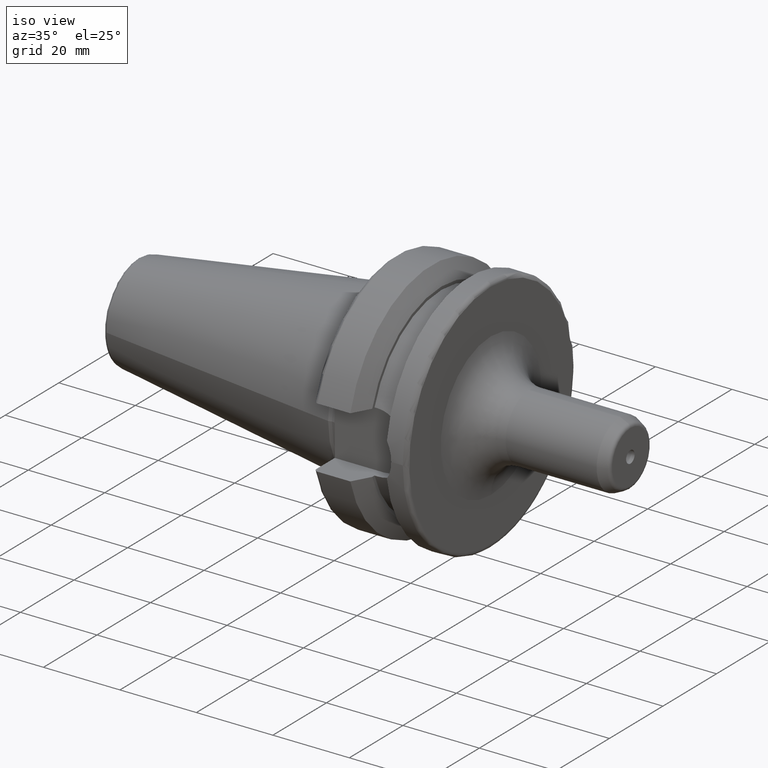
[diagram: clean part render]
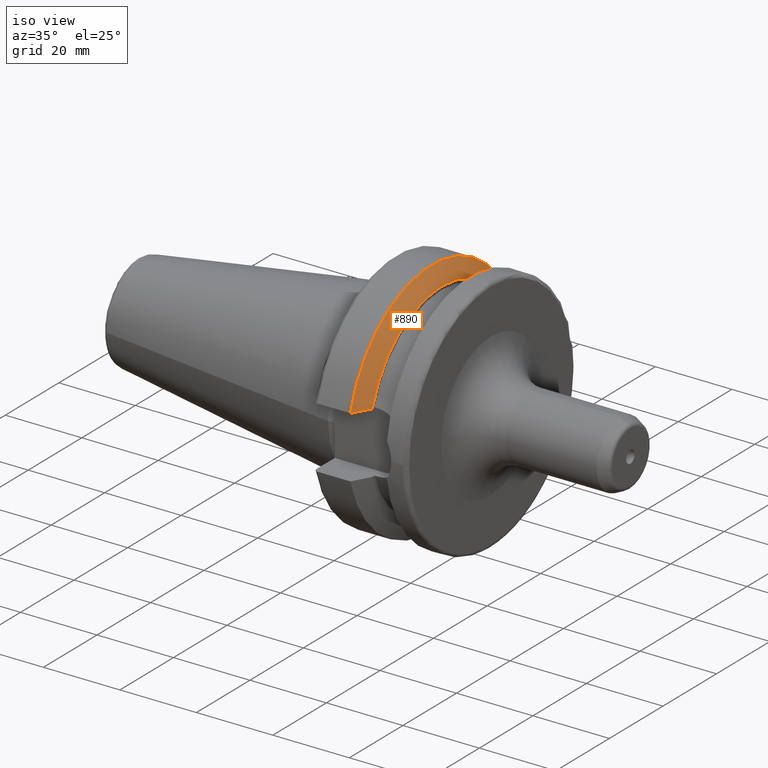
[diagram: same view with one face highlighted and labeled with its STEP entity id]
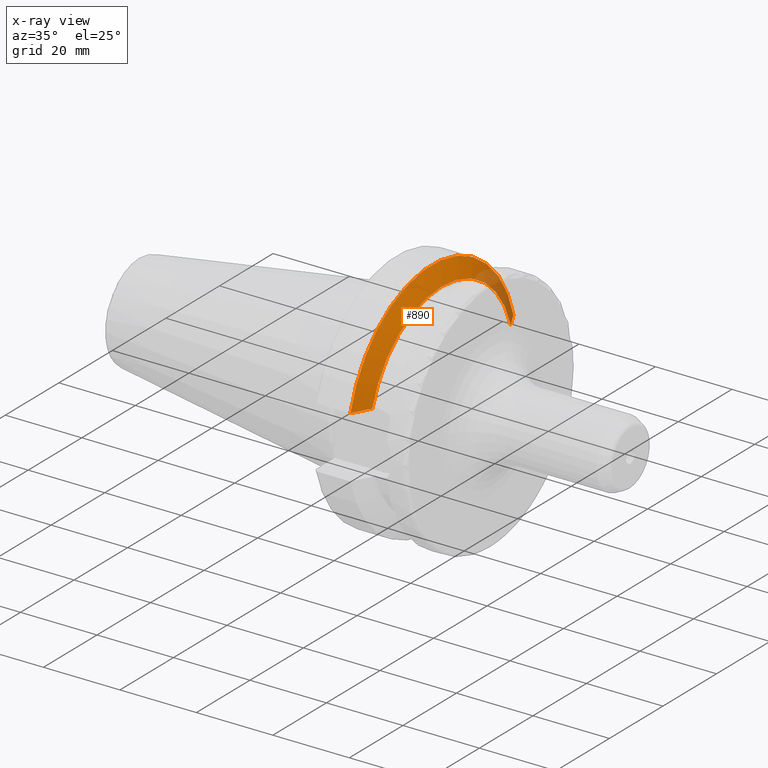
[diagram: x-ray of the same camera — body ghosted, the highlighted face saturated]
A machine part, iso view. The second image highlights one B-rep face of the part: STEP entity #890.
The next image is the same camera in x-ray: the body ghosted, the highlighted face saturated — about 12% of this face is hidden behind the body in this view.
In plain terms, the highlighted conical surface has half-angle 60.125 deg.
Its self-contained STEP definition (entity closure, byte-faithful):
#15=(
BOUNDED_CURVE()
B_SPLINE_CURVE(2,(#1663,#1664,#1665),.UNSPECIFIED.,.F.,.F.)
B_SPLINE_CURVE_WITH_KNOTS((3,3),(0.,0.52358279083281),.UNSPECIFIED.)
CURVE()
GEOMETRIC_REPRESENTATION_ITEM()
RATIONAL_B_SPLINE_CURVE((1.,1.00307360097546,1.))
REPRESENTATION_ITEM('')
);
#18=(
BOUNDED_CURVE()
B_SPLINE_CURVE(2,(#1823,#1824,#1825),.UNSPECIFIED.,.F.,.F.)
B_SPLINE_CURVE_WITH_KNOTS((3,3),(0.,0.52358279083281),.UNSPECIFIED.)
CURVE()
GEOMETRIC_REPRESENTATION_ITEM()
RATIONAL_B_SPLINE_CURVE((1.,1.00307360097546,1.))
REPRESENTATION_ITEM('')
);
#53=CONICAL_SURFACE('',#1012,29.2970358274569,1.0493792127616);
#108=CIRCLE('',#1011,31.5000000000001);
#109=CIRCLE('',#1013,27.0940716549138);
#178=FACE_OUTER_BOUND('',#236,.T.);
#236=EDGE_LOOP('',(#802,#803,#804,#805));
#402=VERTEX_POINT('',#1660);
#403=VERTEX_POINT('',#1662);
#434=VERTEX_POINT('',#1820);
#435=VERTEX_POINT('',#1822);
#502=EDGE_CURVE('',#403,#402,#15,.T.);
#547=EDGE_CURVE('',#435,#434,#18,.T.);
#568=EDGE_CURVE('',#434,#403,#108,.T.);
#569=EDGE_CURVE('',#435,#402,#109,.T.);
#802=ORIENTED_EDGE('',*,*,#502,.T.);
#803=ORIENTED_EDGE('',*,*,#569,.F.);
#804=ORIENTED_EDGE('',*,*,#547,.T.);
#805=ORIENTED_EDGE('',*,*,#568,.T.);
#890=ADVANCED_FACE('',(#178),#53,.T.);
#1011=AXIS2_PLACEMENT_3D('',#1866,#1255,#1256);
#1012=AXIS2_PLACEMENT_3D('',#1867,#1257,#1258);
#1013=AXIS2_PLACEMENT_3D('',#1868,#1259,#1260);
#1255=DIRECTION('center_axis',(1.,0.,0.));
#1256=DIRECTION('ref_axis',(0.,0.,-1.));
#1257=DIRECTION('center_axis',(-1.,0.,0.));
#1258=DIRECTION('ref_axis',(0.,1.,0.));
#1259=DIRECTION('center_axis',(1.,0.,0.));
#1260=DIRECTION('ref_axis',(0.,0.,-1.));
#1660=CARTESIAN_POINT('',(14.1,-25.8705666509569,8.05));
#1662=CARTESIAN_POINT('',(11.5690363073382,-30.4540227227866,8.05));
#1663=CARTESIAN_POINT('Ctrl Pts',(11.5690363073382,-30.4540227227866,8.05));
#1664=CARTESIAN_POINT('Ctrl Pts',(12.9374976962938,-27.989970265181,8.05));
#1665=CARTESIAN_POINT('Ctrl Pts',(14.1,-25.8705666509569,8.05));
#1820=CARTESIAN_POINT('',(11.5690363073382,30.4540227227866,8.05));
#1822=CARTESIAN_POINT('',(14.1,25.8705666509569,8.05));
#1823=CARTESIAN_POINT('Ctrl Pts',(14.1,25.8705666509569,8.05));
#1824=CARTESIAN_POINT('Ctrl Pts',(12.9374976962938,27.989970265181,8.05));
#1825=CARTESIAN_POINT('Ctrl Pts',(11.5690363073382,30.4540227227866,8.05));
#1866=CARTESIAN_POINT('Origin',(11.5690363073382,0.,0.));
#1867=CARTESIAN_POINT('Origin',(12.8345181536691,0.,0.));
#1868=CARTESIAN_POINT('Origin',(14.1,0.,0.));